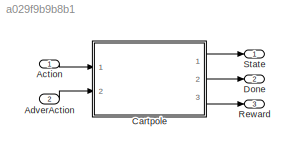
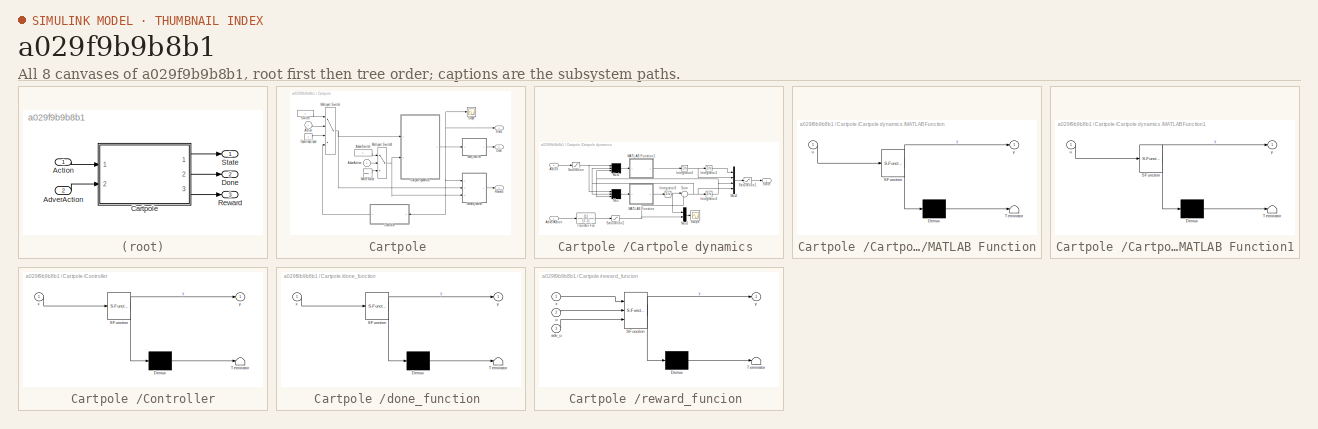
[diagram: thumbnail index - all 8 canvases of the model, root first then tree order]
MODEL slx_a029f9b9b8b1
KIND model
CONFIG AbsTol = auto
CONFIG EnableMultiTasking = off
CONFIG FixedStep = auto
CONFIG MaxStep = auto
CONFIG MinStep = auto
CONFIG RelTol = 1e-3
CONFIG SampleTimeConstraint = Unconstrained
CONFIG Solver = FixedStepAuto
CONFIG SolverName = FixedStepAuto
CONFIG StartTime = 0.0
CONFIG StopTime = 10.0
BLOCK [Inport] Action
  IconDisplay = Port number
BLOCK [Inport] AdverAction
  IconDisplay = Port number
  Port = 2
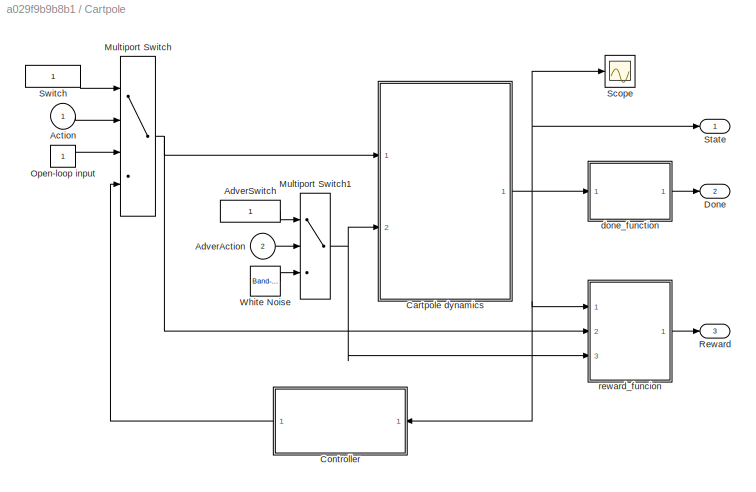
BLOCK [SubSystem] Cartpole 
  Ports = [2, 3]
  RequestExecContextInheritance = off
BLOCK [Inport] Cartpole /Action
  IconDisplay = Port number
BLOCK [Inport] Cartpole /AdverAction
  IconDisplay = Port number
  Port = 2
BLOCK [Constant] Cartpole /AdverSwitch
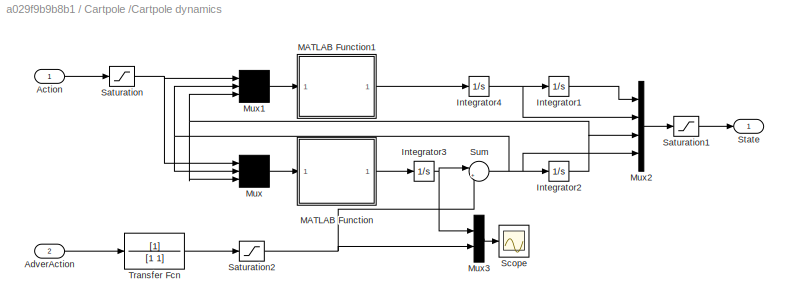
BLOCK [SubSystem] Cartpole /Cartpole dynamics 
  Ports = [2, 1]
  RequestExecContextInheritance = off
BLOCK [Inport] Cartpole /Cartpole dynamics /Action 
  IconDisplay = Port number
BLOCK [Inport] Cartpole /Cartpole dynamics /AdverAction
  IconDisplay = Port number
  Port = 2
BLOCK [Integrator] Cartpole /Cartpole dynamics /Integrator1
  InitialCondition = x_ini(1)
  Ports = [1, 1]
BLOCK [Integrator] Cartpole /Cartpole dynamics /Integrator2
  InitialCondition = x_ini(3)
  Ports = [1, 1]
BLOCK [Integrator] Cartpole /Cartpole dynamics /Integrator3
  InitialCondition = x_ini(4)
  Ports = [1, 1]
BLOCK [Integrator] Cartpole /Cartpole dynamics /Integrator4
  InitialCondition = x_ini(2)
  Ports = [1, 1]
BLOCK [SubSystem] Cartpole /Cartpole dynamics /MATLAB Function
  ErrorFcn = Stateflow.Translate.translate
  PermitHierarchicalResolution = ExplicitOnly
  Ports = [1, 1]
  RequestExecContextInheritance = off
  SFBlockType = MATLAB Function
  TreatAsAtomicUnit = on
BLOCK [Demux] Cartpole /Cartpole dynamics /MATLAB Function/ Demux 
  DisplayOption = bar
  Outputs = 1
  Ports = [1, 1]
BLOCK [S-Function] Cartpole /Cartpole dynamics /MATLAB Function/ SFunction 
  EnableBusSupport = on
  FunctionName = sf_sfun
  Parameters = g,l_cg,m_cart,m_pendulum
  PortCounts = [1 2]
  Ports = [1, 2]
  SFcnIsStateOwnerBlock = off
  SFunctionDeploymentMode = off
  Tag = Stateflow S-Function cartpole 6
BLOCK [Terminator] Cartpole /Cartpole dynamics /MATLAB Function/ Terminator 
BLOCK [Inport] Cartpole /Cartpole dynamics /MATLAB Function/u
  IconDisplay = Port number
BLOCK [Outport] Cartpole /Cartpole dynamics /MATLAB Function/y
  IconDisplay = Port number
  VectorParamsAs1DForOutWhenUnconnected = on
BLOCK [SubSystem] Cartpole /Cartpole dynamics /MATLAB Function1
  ErrorFcn = Stateflow.Translate.translate
  PermitHierarchicalResolution = ExplicitOnly
  Ports = [1, 1]
  RequestExecContextInheritance = off
  SFBlockType = MATLAB Function
  TreatAsAtomicUnit = on
BLOCK [Demux] Cartpole /Cartpole dynamics /MATLAB Function1/ Demux 
  DisplayOption = bar
  Outputs = 1
  Ports = [1, 1]
BLOCK [S-Function] Cartpole /Cartpole dynamics /MATLAB Function1/ SFunction 
  EnableBusSupport = on
  FunctionName = sf_sfun
  Parameters = g,l_cg,m_cart,m_pendulum
  PortCounts = [1 2]
  Ports = [1, 2]
  SFcnIsStateOwnerBlock = off
  SFunctionDeploymentMode = off
  Tag = Stateflow S-Function cartpole 7
BLOCK [Terminator] Cartpole /Cartpole dynamics /MATLAB Function1/ Terminator 
BLOCK [Inport] Cartpole /Cartpole dynamics /MATLAB Function1/u
  IconDisplay = Port number
BLOCK [Outport] Cartpole /Cartpole dynamics /MATLAB Function1/y
  IconDisplay = Port number
  VectorParamsAs1DForOutWhenUnconnected = on
BLOCK [Mux] Cartpole /Cartpole dynamics /Mux
  Inputs = 3
  Ports = [3, 1]
BLOCK [Mux] Cartpole /Cartpole dynamics /Mux1
  Inputs = 3
  Ports = [3, 1]
BLOCK [Mux] Cartpole /Cartpole dynamics /Mux2
  DisplayOption = bar
  Ports = [4, 1]
BLOCK [Mux] Cartpole /Cartpole dynamics /Mux3
  DisplayOption = bar
  Inputs = 2
  Ports = [2, 1]
BLOCK [Saturate] Cartpole /Cartpole dynamics /Saturation
  InputPortMap = u0
  LowerLimit = a_min
  Ports = [1, 1]
  UpperLimit = a_max
BLOCK [Saturate] Cartpole /Cartpole dynamics /Saturation1
  InputPortMap = u0
  LowerLimit = x_min
  Ports = [1, 1]
  UpperLimit = x_max
BLOCK [Saturate] Cartpole /Cartpole dynamics /Saturation2
  InputPortMap = u0
  LowerLimit = adva_min
  Ports = [1, 1]
  UpperLimit = adva_max
BLOCK [Scope] Cartpole /Cartpole dynamics /Scope
  Floating = off
  NumInputPorts = 1
  Ports = [1]
  ScopeSpecificationString = Simulink.scopes.TimeScopeBlockCfg('CurrentConfiguration', extmgr.ConfigurationSet(extmgr.Configuration('Core','General UI',true),extmgr.Configuration('Core','Source UI',true),extmgr.Configuration('Sources','WiredSimulink',true,'DataLoggingVariableName','ScopeData1'),extmgr.Configuration('Visuals','Time Domain',true,'SerializedDisplays',{struct('MinYLimReal','-1.00000','MaxYLimReal','1.00000','YLab...<+1395ch>
BLOCK [Outport] Cartpole /Cartpole dynamics /State
  IconDisplay = Port number
BLOCK [Sum] Cartpole /Cartpole dynamics /Sum
  IconShape = round
  InputSameDT = off
  Inputs = |++
  OutDataTypeStr = Inherit: Inherit via internal rule
  Ports = [2, 1]
  SaturateOnIntegerOverflow = off
BLOCK [TransferFcn] Cartpole /Cartpole dynamics /Transfer Fcn
  Denominator = [1 1]
BLOCK [SubSystem] Cartpole /Controller
  ErrorFcn = Stateflow.Translate.translate
  PermitHierarchicalResolution = ExplicitOnly
  Ports = [1, 1]
  RequestExecContextInheritance = off
  SFBlockType = MATLAB Function
  TreatAsAtomicUnit = on
BLOCK [Demux] Cartpole /Controller/ Demux 
  DisplayOption = bar
  Outputs = 1
  Ports = [1, 1]
BLOCK [S-Function] Cartpole /Controller/ SFunction 
  EnableBusSupport = on
  FunctionName = sf_sfun
  PortCounts = [1 2]
  Ports = [1, 2]
  SFcnIsStateOwnerBlock = off
  SFunctionDeploymentMode = off
  Tag = Stateflow S-Function cartpole 2
BLOCK [Terminator] Cartpole /Controller/ Terminator 
BLOCK [Inport] Cartpole /Controller/x
  IconDisplay = Port number
BLOCK [Outport] Cartpole /Controller/y
  IconDisplay = Port number
  VectorParamsAs1DForOutWhenUnconnected = on
BLOCK [Outport] Cartpole /Done
  IconDisplay = Port number
  Port = 2
  VectorParamsAs1DForOutWhenUnconnected = on
BLOCK [MultiPortSwitch] Cartpole /Multiport Switch
  InputSameDT = off
  Ports = [4, 1]
  SaturateOnIntegerOverflow = off
BLOCK [MultiPortSwitch] Cartpole /Multiport Switch1
  InputSameDT = off
  Inputs = 2
  Ports = [3, 1]
  SaturateOnIntegerOverflow = off
BLOCK [Constant] Cartpole /Open-loop input
BLOCK [Outport] Cartpole /Reward
  IconDisplay = Port number
  Port = 3
  VectorParamsAs1DForOutWhenUnconnected = on
BLOCK [Scope] Cartpole /Scope
  Floating = off
  NumInputPorts = 1
  Ports = [1]
  ScopeSpecificationString = Simulink.scopes.TimeScopeBlockCfg('CurrentConfiguration', extmgr.ConfigurationSet(extmgr.Configuration('Core','General UI',true),extmgr.Configuration('Core','Source UI',true),extmgr.Configuration('Sources','WiredSimulink',true),extmgr.Configuration('Visuals','Time Domain',true,'SerializedDisplays',{struct('MinYLimReal','-1.00000','MaxYLimReal','1.00000','YLabelReal','','MinYLimMag','0.00000','MaxY...<+1409ch>
BLOCK [Outport] Cartpole /State
  IconDisplay = Port number
  VectorParamsAs1DForOutWhenUnconnected = on
BLOCK [Constant] Cartpole /Switch
BLOCK [Reference] Cartpole /White Noise  REF=simulink/Sources/Band-Limited
White Noise
  Commented = on
  Ports = [0, 1]
  SourceBlock = simulink/Sources/Band-Limited\nWhite Noise
  SourceProductBaseCode = SL
  SourceProductName = Simulink
  SourceType = Band-Limited White Noise.
BLOCK [SubSystem] Cartpole /done_function 
  ErrorFcn = Stateflow.Translate.translate
  PermitHierarchicalResolution = ExplicitOnly
  Ports = [1, 1]
  RequestExecContextInheritance = off
  SFBlockType = MATLAB Function
  TreatAsAtomicUnit = on
BLOCK [Demux] Cartpole /done_function / Demux 
  DisplayOption = bar
  Outputs = 1
  Ports = [1, 1]
BLOCK [S-Function] Cartpole /done_function / SFunction 
  EnableBusSupport = on
  FunctionName = sf_sfun
  PortCounts = [1 2]
  Ports = [1, 2]
  SFcnIsStateOwnerBlock = off
  SFunctionDeploymentMode = off
  Tag = Stateflow S-Function cartpole 8
BLOCK [Terminator] Cartpole /done_function / Terminator 
BLOCK [Inport] Cartpole /done_function /x
  IconDisplay = Port number
BLOCK [Outport] Cartpole /done_function /y
  IconDisplay = Port number
  VectorParamsAs1DForOutWhenUnconnected = on
BLOCK [SubSystem] Cartpole /reward_funcion 
  ErrorFcn = Stateflow.Translate.translate
  PermitHierarchicalResolution = ExplicitOnly
  Ports = [3, 1]
  RequestExecContextInheritance = off
  SFBlockType = MATLAB Function
  TreatAsAtomicUnit = on
BLOCK [Demux] Cartpole /reward_funcion / Demux 
  DisplayOption = bar
  Outputs = 1
  Ports = [1, 1]
BLOCK [S-Function] Cartpole /reward_funcion / SFunction 
  EnableBusSupport = on
  FunctionName = sf_sfun
  PortCounts = [3 2]
  Ports = [3, 2]
  SFcnIsStateOwnerBlock = off
  SFunctionDeploymentMode = off
  Tag = Stateflow S-Function cartpole 1
BLOCK [Terminator] Cartpole /reward_funcion / Terminator 
BLOCK [Inport] Cartpole /reward_funcion /adv_u
  IconDisplay = Port number
  Port = 3
BLOCK [Inport] Cartpole /reward_funcion /u
  IconDisplay = Port number
  Port = 2
BLOCK [Inport] Cartpole /reward_funcion /x
  IconDisplay = Port number
BLOCK [Outport] Cartpole /reward_funcion /y
  IconDisplay = Port number
  VectorParamsAs1DForOutWhenUnconnected = on
BLOCK [Outport] Done
  IconDisplay = Port number
  Port = 2
  VectorParamsAs1DForOutWhenUnconnected = on
BLOCK [Outport] Reward
  IconDisplay = Port number
  Port = 3
  VectorParamsAs1DForOutWhenUnconnected = on
BLOCK [Outport] State
  IconDisplay = Port number
  VectorParamsAs1DForOutWhenUnconnected = on
LINE Action:1 -> Cartpole :1
LINE AdverAction:1 -> Cartpole :2
LINE Cartpole /Action:1 -> Cartpole /Multiport Switch:2
LINE Cartpole /AdverAction:1 -> Cartpole /Multiport Switch1:2
LINE Cartpole /AdverSwitch:1 -> Cartpole /Multiport Switch1:1
LINE Cartpole /Cartpole dynamics /Action :1 -> Cartpole /Cartpole dynamics /Saturation:1
LINE Cartpole /Cartpole dynamics /AdverAction:1 -> Cartpole /Cartpole dynamics /Transfer Fcn:1
LINE Cartpole /Cartpole dynamics /Integrator1:1 -> Cartpole /Cartpole dynamics /Mux2:1
NET Cartpole /Cartpole dynamics /Integrator2:1 -> Cartpole /Cartpole dynamics /Mux1:3, Cartpole /Cartpole dynamics /Mux2:3, Cartpole /Cartpole dynamics /Mux:3
NET Cartpole /Cartpole dynamics /Integrator3:1 -> Cartpole /Cartpole dynamics /Mux3:1, Cartpole /Cartpole dynamics /Sum:1
NET Cartpole /Cartpole dynamics /Integrator4:1 -> Cartpole /Cartpole dynamics /Integrator1:1, Cartpole /Cartpole dynamics /Mux2:2
LINE Cartpole /Cartpole dynamics /MATLAB Function1:1 -> Cartpole /Cartpole dynamics /Integrator4:1
LINE Cartpole /Cartpole dynamics /MATLAB Function:1 -> Cartpole /Cartpole dynamics /Integrator3:1
LINE Cartpole /Cartpole dynamics /Mux1:1 -> Cartpole /Cartpole dynamics /MATLAB Function1:1
LINE Cartpole /Cartpole dynamics /Mux2:1 -> Cartpole /Cartpole dynamics /Saturation1:1
LINE Cartpole /Cartpole dynamics /Mux3:1 -> Cartpole /Cartpole dynamics /Scope:1
LINE Cartpole /Cartpole dynamics /Mux:1 -> Cartpole /Cartpole dynamics /MATLAB Function:1
LINE Cartpole /Cartpole dynamics /Saturation1:1 -> Cartpole /Cartpole dynamics /State:1
NET Cartpole /Cartpole dynamics /Saturation2:1 -> Cartpole /Cartpole dynamics /Mux3:2, Cartpole /Cartpole dynamics /Sum:2
NET Cartpole /Cartpole dynamics /Saturation:1 -> Cartpole /Cartpole dynamics /Mux1:1, Cartpole /Cartpole dynamics /Mux:1
NET Cartpole /Cartpole dynamics /Sum:1 -> Cartpole /Cartpole dynamics /Integrator2:1, Cartpole /Cartpole dynamics /Mux1:2, Cartpole /Cartpole dynamics /Mux2:4, Cartpole /Cartpole dynamics /Mux:2
LINE Cartpole /Cartpole dynamics /Transfer Fcn:1 -> Cartpole /Cartpole dynamics /Saturation2:1
NET Cartpole /Cartpole dynamics :1 -> Cartpole /Controller:1, Cartpole /Scope:1, Cartpole /State:1, Cartpole /done_function :1, Cartpole /reward_funcion :1
LINE Cartpole /Controller:1 -> Cartpole /Multiport Switch:4
NET Cartpole /Multiport Switch1:1 -> Cartpole /Cartpole dynamics :2, Cartpole /reward_funcion :3
NET Cartpole /Multiport Switch:1 -> Cartpole /Cartpole dynamics :1, Cartpole /reward_funcion :2
LINE Cartpole /Open-loop input:1 -> Cartpole /Multiport Switch:3
LINE Cartpole /Switch:1 -> Cartpole /Multiport Switch:1
LINE Cartpole /White Noise:1 -> Cartpole /Multiport Switch1:3
LINE Cartpole /done_function :1 -> Cartpole /Done:1
LINE Cartpole /reward_funcion :1 -> Cartpole /Reward:1
LINE Cartpole :1 -> State:1
LINE Cartpole :2 -> Done:1
LINE Cartpole :3 -> Reward:1
note: NET lines group one-source signal fan-out (src -> all destinations, sorted); 1:1 wires keep LINE
CHART Cartpole
/reward_funcion
 states=1 transitions=1
  STATE_LABEL 'eML_blk_kernel()'
  STATE_LABEL 'SCRIPT:\nfunction y = fcn(x, u, adv_u)\ndone = (abs(x(1)) > 2.4)||(abs(x(3)) > 0.2094);\ny = 1 - double(done);'
CHART Cartpole
/Controller states=1 transitions=1
  STATE_LABEL 'eML_blk_kernel()'
  STATE_LABEL 'SCRIPT:\nfunction y = fcn(x)\ndone = (abs(x(1)) > 2.4)||(abs(x(3)) > 0.2094);\ny = done;'
CHART Cartpole
/Cartpole dynamics
/MATLAB Function states=1 transitions=1
  STATE_LABEL 'eML_blk_kernel()'
  STATE_LABEL 'SCRIPT:\nfunction y = fcn(u, m_pendulum, m_cart, g, l_cg)\ny = (-u(1)*cos(u(3))/m_pendulum + (m_cart+m_pendulum)*g*sin(u(3))/m_pendulum - l_cg*power(u(2),2)*sin(u(3))*cos(u(3)))/(l_cg*(m_cart/m_pendulum + power(sin(u(3)),2)));\n'
CHART Cartpole
/Cartpole dynamics
/MATLAB Function1 states=1 transitions=1
  STATE_LABEL 'eML_blk_kernel()'
  STATE_LABEL 'SCRIPT:\nfunction y = fcn(u, m_pendulum, m_cart, g, l_cg)\ny = (u(1)/m_pendulum - g*sin(u(3))*cos(u(3)) + l_cg*power(u(2),2)*sin(u(3)))/(m_cart/m_pendulum + power(sin(u(3)),2));\n'
CHART Cartpole
/done_function
 states=1 transitions=1
  STATE_LABEL 'eML_blk_kernel()'
  STATE_LABEL 'SCRIPT:\nfunction y = fcn(x)\ndone = (abs(x(1)) > 2.4)||(abs(x(3)) > 0.2094);\ny = done;'
